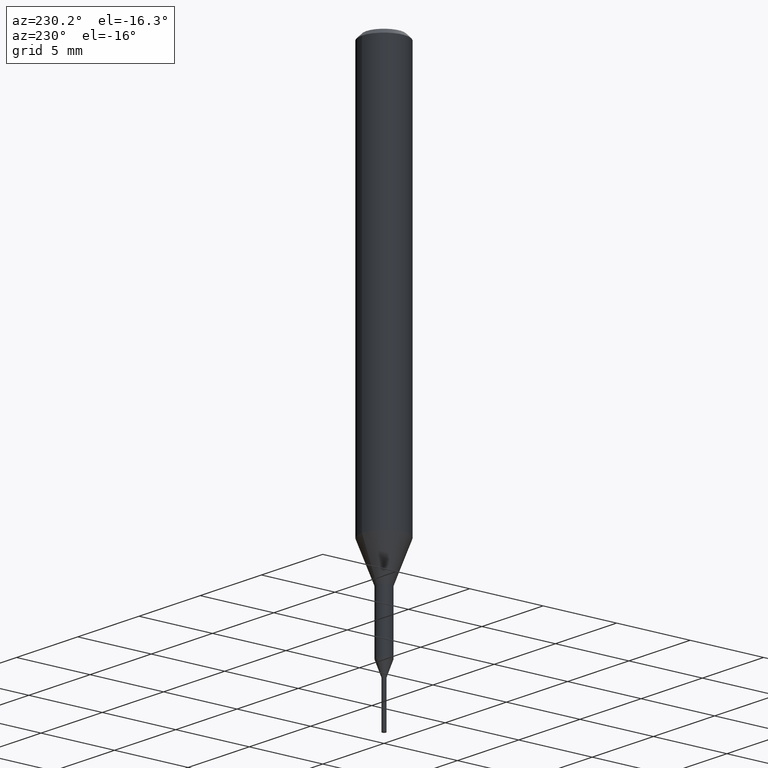
[diagram: clean part render]
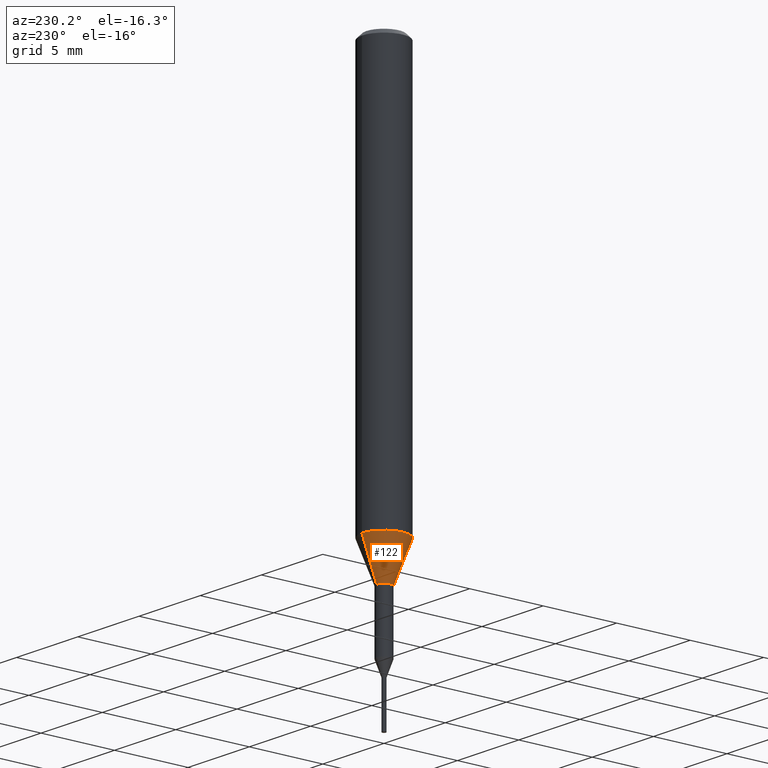
[diagram: same view with one face highlighted and labeled with its STEP entity id]
A machine part, auxiliary view. The second image highlights one B-rep face of the part: STEP entity #122.
In plain terms, the highlighted conical surface has half-angle 21.001 deg.
Its self-contained STEP definition (entity closure, byte-faithful):
#122=ADVANCED_FACE('',(#299),#300,.T.);
#128=VERTEX_POINT('',#306);
#154=VERTEX_POINT('',#337);
#158=VERTEX_POINT('',#342);
#182=EDGE_CURVE('',#154,#238,#371,.T.);
#190=EDGE_CURVE('',#158,#238,#380,.T.);
#196=EDGE_CURVE('',#158,#128,#386,.T.);
#238=VERTEX_POINT('',#433);
#252=EDGE_CURVE('',#128,#154,#448,.T.);
#299=FACE_OUTER_BOUND('',#490,.T.);
#300=CONICAL_SURFACE('',#491,1.0,0.366530581623394);
#306=CARTESIAN_POINT('',(1.83690953073357E-016,-1.5,-27.395));
#337=CARTESIAN_POINT('',(0.0,1.5,-27.395));
#342=CARTESIAN_POINT('',(6.12303176911189E-017,-0.5,-30.0));
#371=LINE('',#580,#581);
#380=CIRCLE('',#592,0.5);
#386=LINE('',#602,#603);
#433=CARTESIAN_POINT('',(0.0,0.5,-30.0));
#448=CIRCLE('',#682,1.5);
#490=EDGE_LOOP('',(#711,#712,#713,#714));
#491=AXIS2_PLACEMENT_3D('',#715,#716,#717);
#580=CARTESIAN_POINT('',(-1.22460635382238E-016,1.0,-28.6975));
#581=VECTOR('',#817,1.0);
#592=AXIS2_PLACEMENT_3D('',#829,#830,#831);
#602=CARTESIAN_POINT('',(1.22460635382238E-016,-1.0,-28.6975));
#603=VECTOR('',#836,1.0);
#682=AXIS2_PLACEMENT_3D('',#916,#917,#918);
#711=ORIENTED_EDGE('',*,*,#182,.T.);
#712=ORIENTED_EDGE('',*,*,#190,.F.);
#713=ORIENTED_EDGE('',*,*,#196,.T.);
#714=ORIENTED_EDGE('',*,*,#252,.T.);
#715=CARTESIAN_POINT('',(0.0,0.0,-28.6975));
#716=DIRECTION('',(-0.0,-0.0,1.0));
#717=DIRECTION('',(0.0,1.0,0.0));
#817=DIRECTION('',(4.38872745501645E-017,-0.35837862847256,-0.933576327171018));
#829=CARTESIAN_POINT('',(0.0,0.0,-30.0));
#830=DIRECTION('',(0.0,0.0,-1.0));
#831=DIRECTION('',(0.0,1.0,0.0));
#836=DIRECTION('',(4.38872745501645E-017,-0.35837862847256,0.933576327171018));
#916=CARTESIAN_POINT('',(0.0,0.0,-27.395));
#917=DIRECTION('',(0.0,0.0,-1.0));
#918=DIRECTION('',(0.0,1.0,0.0));